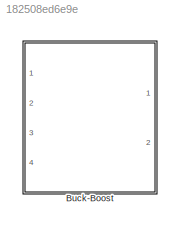
MODEL slx_182508ed6e9e
KIND model
CONFIG AbsTol = auto
CONFIG EnableMultiTasking = on
CONFIG FixedStep = auto
CONFIG MaxStep = 0.01
CONFIG MinStep = auto
CONFIG RelTol = 1e-4
CONFIG SampleTimeConstraint = Unconstrained
CONFIG Solver = VariableStepAuto
CONFIG SolverName = VariableStepAuto
CONFIG StartTime = 0.0
CONFIG StopTime = 2
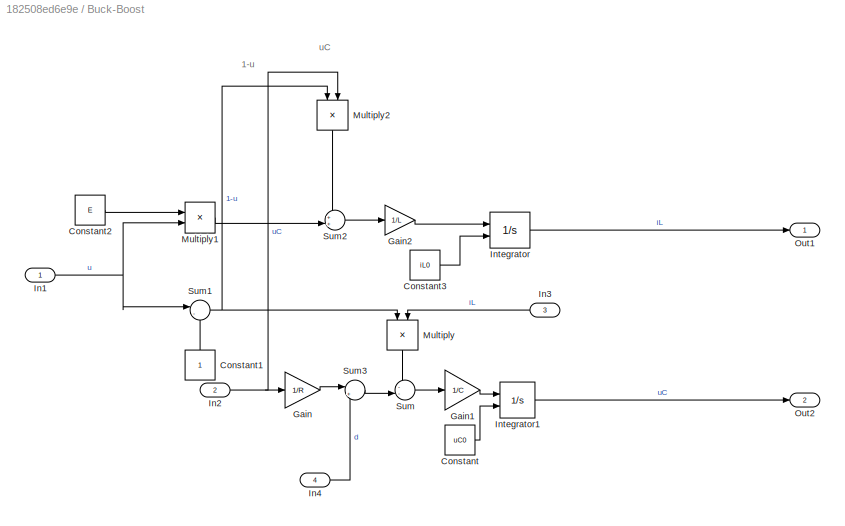
BLOCK [SubSystem] Buck-Boost
  Ports = [4, 2]
  RequestExecContextInheritance = off
  ShowPortLabels = SignalName
BLOCK [Constant] Buck-Boost/Constant
  Value = uC0
BLOCK [Constant] Buck-Boost/Constant1
BLOCK [Constant] Buck-Boost/Constant2
  Value = E
BLOCK [Constant] Buck-Boost/Constant3
  Value = iL0
BLOCK [Gain] Buck-Boost/Gain
  Gain = 1/R
  OutDataTypeStr = Inherit: Inherit via internal rule
  ParamDataTypeStr = Inherit: Inherit via internal rule
  SaturateOnIntegerOverflow = off
BLOCK [Gain] Buck-Boost/Gain1
  Gain = 1/C
  OutDataTypeStr = Inherit: Inherit via internal rule
  ParamDataTypeStr = Inherit: Inherit via internal rule
  SaturateOnIntegerOverflow = off
BLOCK [Gain] Buck-Boost/Gain2
  Gain = 1/L
  OutDataTypeStr = Inherit: Inherit via internal rule
  ParamDataTypeStr = Inherit: Inherit via internal rule
  SaturateOnIntegerOverflow = off
BLOCK [Inport] Buck-Boost/In1
  IconDisplay = Port number
BLOCK [Inport] Buck-Boost/In2
  IconDisplay = Port number
  Port = 2
BLOCK [Inport] Buck-Boost/In3
  IconDisplay = Port number
  Port = 3
BLOCK [Inport] Buck-Boost/In4
  IconDisplay = Port number
  Port = 4
BLOCK [Integrator] Buck-Boost/Integrator
  InitialConditionSource = external
  Ports = [2, 1]
BLOCK [Integrator] Buck-Boost/Integrator1
  InitialConditionSource = external
  Ports = [2, 1]
BLOCK [Product] Buck-Boost/Multiply
  InputSameDT = off
  OutDataTypeStr = Inherit: Inherit via internal rule
  Ports = [2, 1]
  RndMeth = Floor
  SaturateOnIntegerOverflow = off
BLOCK [Product] Buck-Boost/Multiply1
  InputSameDT = off
  OutDataTypeStr = Inherit: Inherit via internal rule
  Ports = [2, 1]
  RndMeth = Floor
  SaturateOnIntegerOverflow = off
BLOCK [Product] Buck-Boost/Multiply2
  InputSameDT = off
  OutDataTypeStr = Inherit: Inherit via internal rule
  Ports = [2, 1]
  RndMeth = Floor
  SaturateOnIntegerOverflow = off
BLOCK [Outport] Buck-Boost/Out1
  IconDisplay = Port number
BLOCK [Outport] Buck-Boost/Out2
  IconDisplay = Port number
  Port = 2
BLOCK [Sum] Buck-Boost/Sum
  IconShape = round
  InputSameDT = off
  Inputs = --|
  OutDataTypeStr = Inherit: Inherit via internal rule
  Ports = [2, 1]
  SaturateOnIntegerOverflow = off
BLOCK [Sum] Buck-Boost/Sum1
  IconShape = round
  InputSameDT = off
  Inputs = |-+
  OutDataTypeStr = Inherit: Inherit via internal rule
  Ports = [2, 1]
  SaturateOnIntegerOverflow = off
BLOCK [Sum] Buck-Boost/Sum2
  IconShape = round
  InputSameDT = off
  Inputs = ++|
  OutDataTypeStr = Inherit: Inherit via internal rule
  Ports = [2, 1]
  SaturateOnIntegerOverflow = off
BLOCK [Sum] Buck-Boost/Sum3
  IconShape = round
  InputSameDT = off
  Inputs = |++
  OutDataTypeStr = Inherit: Inherit via internal rule
  Ports = [2, 1]
  SaturateOnIntegerOverflow = off
ANNOTATION Buck-Boost: 1-u
ANNOTATION Buck-Boost: uC
LINE Buck-Boost/Constant1:1 -> Buck-Boost/Sum1:2
LINE Buck-Boost/Constant2:1 -> Buck-Boost/Multiply1:1
LINE Buck-Boost/Constant3:1 -> Buck-Boost/Integrator:2
LINE Buck-Boost/Constant:1 -> Buck-Boost/Integrator1:2
LINE Buck-Boost/Gain1:1 -> Buck-Boost/Integrator1:1
LINE Buck-Boost/Gain2:1 -> Buck-Boost/Integrator:1
LINE Buck-Boost/Gain:1 -> Buck-Boost/Sum3:1
NET Buck-Boost/In1:1 -> Buck-Boost/Multiply1:2, Buck-Boost/Sum1:1
NET Buck-Boost/In2:1 -> Buck-Boost/Gain:1, Buck-Boost/Multiply2:2
LINE Buck-Boost/In3:1 -> Buck-Boost/Multiply:2
LINE Buck-Boost/In4:1 -> Buck-Boost/Sum3:2
LINE Buck-Boost/Integrator1:1 -> Buck-Boost/Out2:1
LINE Buck-Boost/Integrator:1 -> Buck-Boost/Out1:1
LINE Buck-Boost/Multiply1:1 -> Buck-Boost/Sum2:2
LINE Buck-Boost/Multiply2:1 -> Buck-Boost/Sum2:1
LINE Buck-Boost/Multiply:1 -> Buck-Boost/Sum:1
NET Buck-Boost/Sum1:1 -> Buck-Boost/Multiply2:1, Buck-Boost/Multiply:1
LINE Buck-Boost/Sum2:1 -> Buck-Boost/Gain2:1
LINE Buck-Boost/Sum3:1 -> Buck-Boost/Sum:2
LINE Buck-Boost/Sum:1 -> Buck-Boost/Gain1:1
note: NET lines group one-source signal fan-out (src -> all destinations, sorted); 1:1 wires keep LINE
